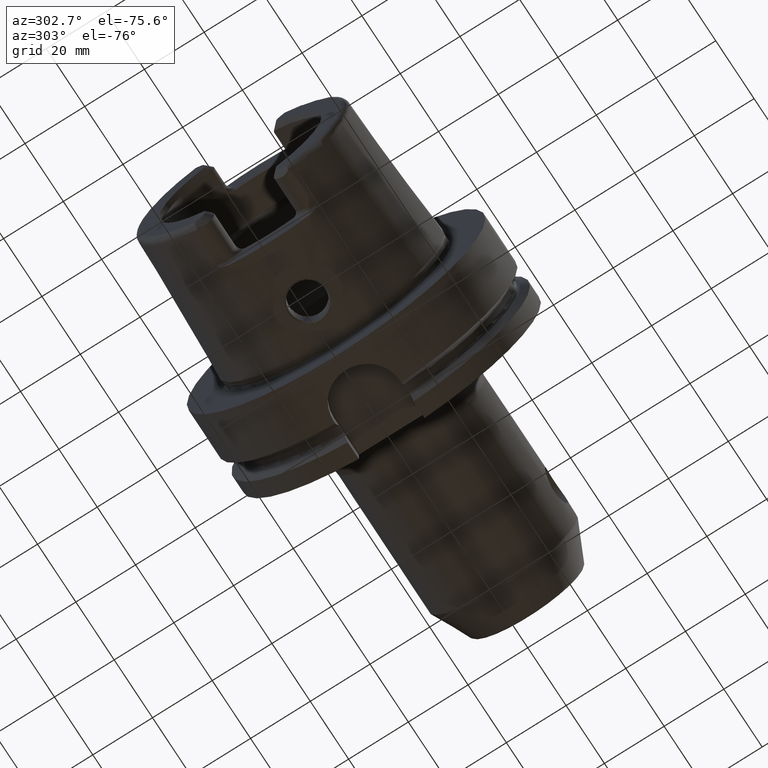
[diagram: clean part render]
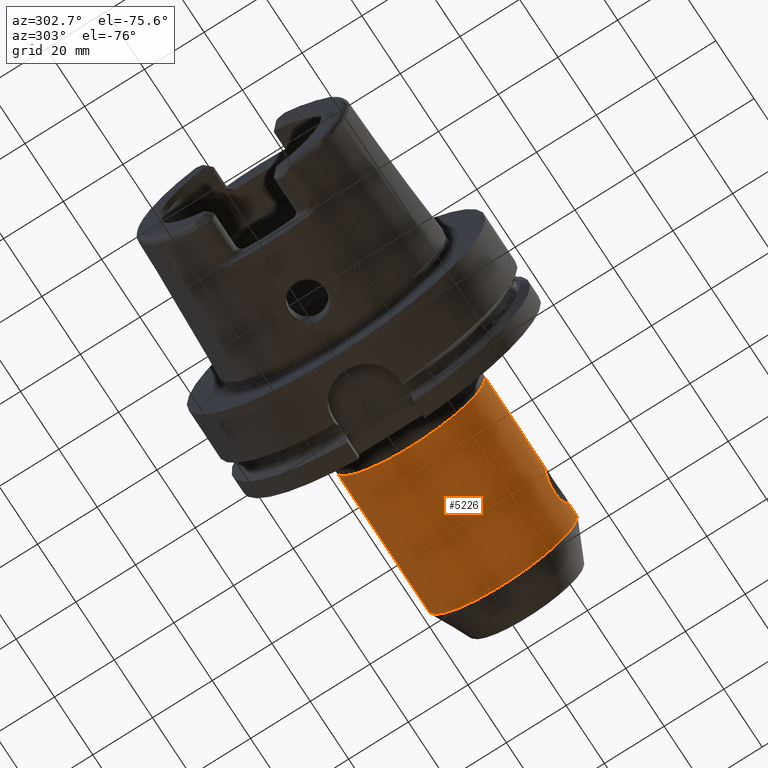
[diagram: same view with one face highlighted and labeled with its STEP entity id]
A machine part, auxiliary view. The second image highlights one B-rep face of the part: STEP entity #5226.
In plain terms, the highlighted cylindrical surface (partial cylindrical patch) has radius 25 mm, axis along (1, 0, 0).
Its self-contained STEP definition (entity closure, byte-faithful):
#1820=CARTESIAN_POINT('',(7.E1,-2.5E1,0.E0));
#1848=CARTESIAN_POINT('',(8.2E1,-2.5E1,0.E0));
#1868=CARTESIAN_POINT('',(8.2E1,-2.5E1,0.E0));
#1869=CARTESIAN_POINT('',(8.2E1,-2.5E1,-2.395002572216E-1));
#1870=CARTESIAN_POINT('',(8.197159751490E1,-2.499315952116E1,
-7.157006226277E-1));
#1871=CARTESIAN_POINT('',(8.184274839931E1,-2.496255022297E1,
-1.426912323537E0));
#1872=CARTESIAN_POINT('',(8.162976176675E1,-2.491332713677E1,
-2.116821868107E0));
#1873=CARTESIAN_POINT('',(8.133255801529E1,-2.484754630473E1,
-2.782177583118E0));
#1874=CARTESIAN_POINT('',(8.095713962035E1,-2.476930008024E1,
-3.406692649141E0));
#1875=CARTESIAN_POINT('',(8.050399533149E1,-2.468218073563E1,
-3.986667531085E0));
#1876=CARTESIAN_POINT('',(7.998629126537E1,-2.459252328858E1,
-4.504342338317E0));
#1877=CARTESIAN_POINT('',(7.940604487395E1,-2.450473481626E1,
-4.957587355917E0));
#1878=CARTESIAN_POINT('',(7.878149440943E1,-2.442537719587E1,
-5.332929586574E0));
#1879=CARTESIAN_POINT('',(7.811551867924E1,-2.435821535163E1,
-5.630270928698E0));
#1880=CARTESIAN_POINT('',(7.742605337271E1,-2.430782905447E1,
-5.842880705797E0));
#1881=CARTESIAN_POINT('',(7.671649826021E1,-2.427639053005E1,
-5.971521361800E0));
#1882=CARTESIAN_POINT('',(7.600021321182E1,-2.426578885012E1,
-6.014236100135E0));
#1883=CARTESIAN_POINT('',(7.528358599631E1,-2.427638726662E1,
-5.971534225462E0));
#1884=CARTESIAN_POINT('',(7.457429603600E1,-2.430780932340E1,
-5.842962872338E0));
#1885=CARTESIAN_POINT('',(7.388460603554E1,-2.435820352787E1,
-5.630321497606E0));
#1886=CARTESIAN_POINT('',(7.321877010938E1,-2.442534777024E1,
-5.333063517680E0));
#1887=CARTESIAN_POINT('',(7.259411179079E1,-2.450471220645E1,
-4.957699614696E0));
#1888=CARTESIAN_POINT('',(7.201388388353E1,-2.459249527255E1,
-4.504492280853E0));
#1889=CARTESIAN_POINT('',(7.149616916764E1,-2.468215022747E1,
-3.986859503755E0));
#1890=CARTESIAN_POINT('',(7.104295261020E1,-2.476928166998E1,
-3.406820457848E0));
#1891=CARTESIAN_POINT('',(7.066759164405E1,-2.484751409797E1,
-2.782467870386E0));
#1892=CARTESIAN_POINT('',(7.037027220742E1,-2.491331918390E1,
-2.116922133318E0));
#1893=CARTESIAN_POINT('',(7.015729746557E1,-2.496253952751E1,
-1.427101871381E0));
#1894=CARTESIAN_POINT('',(7.002839712479E1,-2.499316073095E1,
-7.157105683891E-1));
#1895=CARTESIAN_POINT('',(7.E1,-2.5E1,-2.395011905920E-1));
#1896=CARTESIAN_POINT('',(7.E1,-2.5E1,0.E0));
#1898=DIRECTION('',(-1.E0,0.E0,-2.360102182990E-14));
#1899=VECTOR('',#1898,4.911263814300E0);
#1900=CARTESIAN_POINT('',(8.691126381430E1,-2.5E1,1.132311386244E-13));
#1901=LINE('',#1900,#1899);
#1902=CARTESIAN_POINT('',(8.691126381430E1,0.E0,0.E0));
#1903=DIRECTION('',(-1.E0,0.E0,0.E0));
#1904=DIRECTION('',(0.E0,1.E0,0.E0));
#1905=AXIS2_PLACEMENT_3D('',#1902,#1903,#1904);
#1907=DIRECTION('',(-1.E0,0.E0,0.E0));
#1908=VECTOR('',#1907,4.791126381430E1);
#1909=CARTESIAN_POINT('',(8.691126381430E1,2.5E1,-1.139948361072E-13));
#1910=LINE('',#1909,#1908);
#1911=CARTESIAN_POINT('',(3.9E1,0.E0,0.E0));
#1912=DIRECTION('',(1.E0,0.E0,0.E0));
#1913=DIRECTION('',(0.E0,-1.E0,0.E0));
#1914=AXIS2_PLACEMENT_3D('',#1911,#1912,#1913);
#1916=DIRECTION('',(-1.E0,0.E0,-1.140222876448E-14));
#1917=VECTOR('',#1916,3.1E1);
#1918=CARTESIAN_POINT('',(7.E1,-2.5E1,0.E0));
#1919=LINE('',#1918,#1917);
#3287=CARTESIAN_POINT('',(3.9E1,-2.5E1,0.E0));
#3288=CARTESIAN_POINT('',(3.9E1,2.5E1,0.E0));
#3289=VERTEX_POINT('',#3287);
#3290=VERTEX_POINT('',#3288);
#3291=CARTESIAN_POINT('',(8.691126381430E1,2.5E1,-1.139948361072E-13));
#3292=VERTEX_POINT('',#3291);
#3299=CARTESIAN_POINT('',(8.691126381430E1,-2.5E1,0.E0));
#3300=VERTEX_POINT('',#3299);
#3315=VERTEX_POINT('',#1820);
#3316=VERTEX_POINT('',#1848);
#5212=CARTESIAN_POINT('',(2.545E1,0.E0,0.E0));
#5213=DIRECTION('',(1.E0,0.E0,0.E0));
#5214=DIRECTION('',(0.E0,-1.E0,0.E0));
#5215=AXIS2_PLACEMENT_3D('',#5212,#5213,#5214);
#5216=CYLINDRICAL_SURFACE('',#5215,2.5E1);
#5217=ORIENTED_EDGE('',*,*,#5203,.F.);
#5218=ORIENTED_EDGE('',*,*,#5178,.F.);
#5220=ORIENTED_EDGE('',*,*,#5219,.F.);
#5221=ORIENTED_EDGE('',*,*,#5174,.T.);
#5222=ORIENTED_EDGE('',*,*,#5144,.F.);
#5223=ORIENTED_EDGE('',*,*,#5171,.F.);
#5224=EDGE_LOOP('',(#5217,#5218,#5220,#5221,#5222,#5223));
#5225=FACE_OUTER_BOUND('',#5224,.F.);
#5226=ADVANCED_FACE('',(#5225),#5216,.T.);
#1897=B_SPLINE_CURVE_WITH_KNOTS('',3,(#1868,#1869,#1870,#1871,#1872,#1873,#1874,
#1875,#1876,#1877,#1878,#1879,#1880,#1881,#1882,#1883,#1884,#1885,#1886,#1887,
#1888,#1889,#1890,#1891,#1892,#1893,#1894,#1895,#1896),.UNSPECIFIED.,.F.,.F.,(4,
1,1,1,1,1,1,1,1,1,1,1,1,1,1,1,1,1,1,1,1,1,1,1,1,1,4),(0.E0,3.846153846154E-2,
7.692307692308E-2,1.153846153846E-1,1.538461538462E-1,1.923076923077E-1,
2.307692307692E-1,2.692307692308E-1,3.076923076923E-1,3.461538461538E-1,
3.846153846154E-1,4.230769230769E-1,4.615384615385E-1,5.E-1,5.384615384615E-1,
5.769230769231E-1,6.153846153846E-1,6.538461538462E-1,6.923076923077E-1,
7.307692307692E-1,7.692307692308E-1,8.076923076923E-1,8.461538461538E-1,
8.846153846154E-1,9.230769230769E-1,9.615384615385E-1,1.E0),.UNSPECIFIED.);
#1906=CIRCLE('',#1905,2.5E1);
#1915=CIRCLE('',#1914,2.5E1);
#5144=EDGE_CURVE('',#3289,#3290,#1915,.T.);
#5171=EDGE_CURVE('',#3315,#3289,#1919,.T.);
#5174=EDGE_CURVE('',#3292,#3290,#1910,.T.);
#5178=EDGE_CURVE('',#3300,#3316,#1901,.T.);
#5203=EDGE_CURVE('',#3316,#3315,#1897,.T.);
#5219=EDGE_CURVE('',#3292,#3300,#1906,.T.);